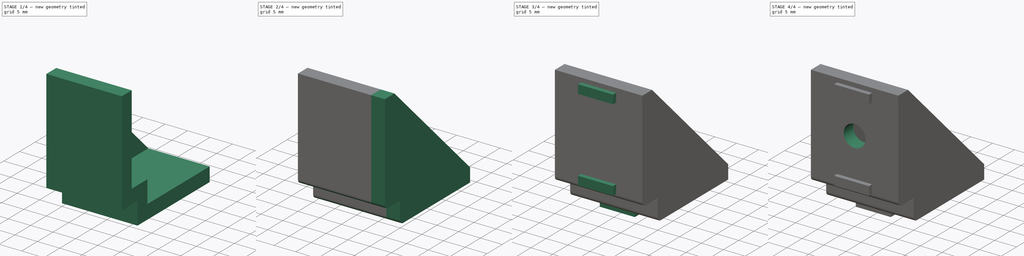
[diagram: build sequence overview — one tinted view per stage of 4, left to right]
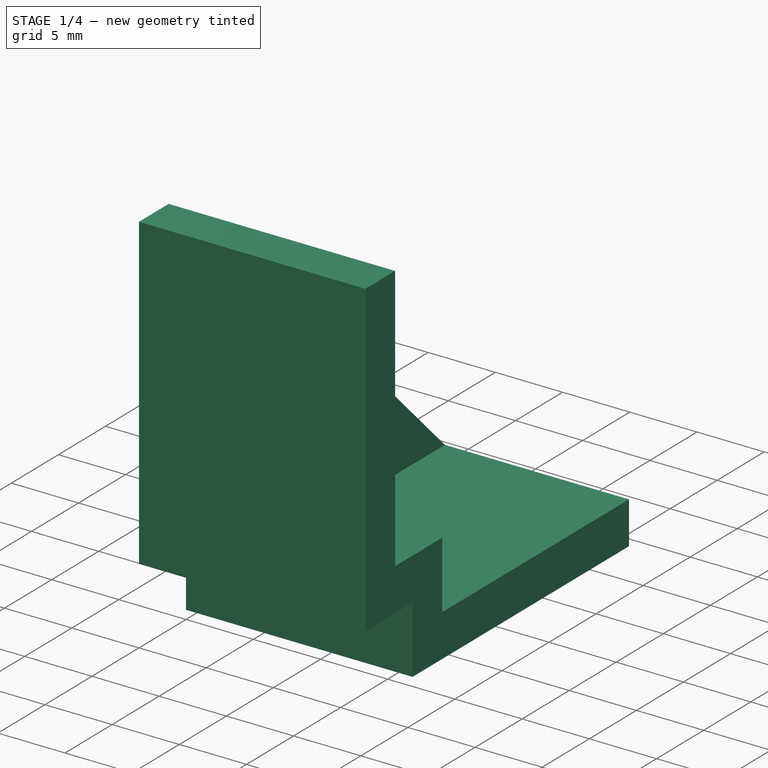
[diagram: stage 1 of 4 — iso view after this stage's code; geometry added in this stage tinted green]
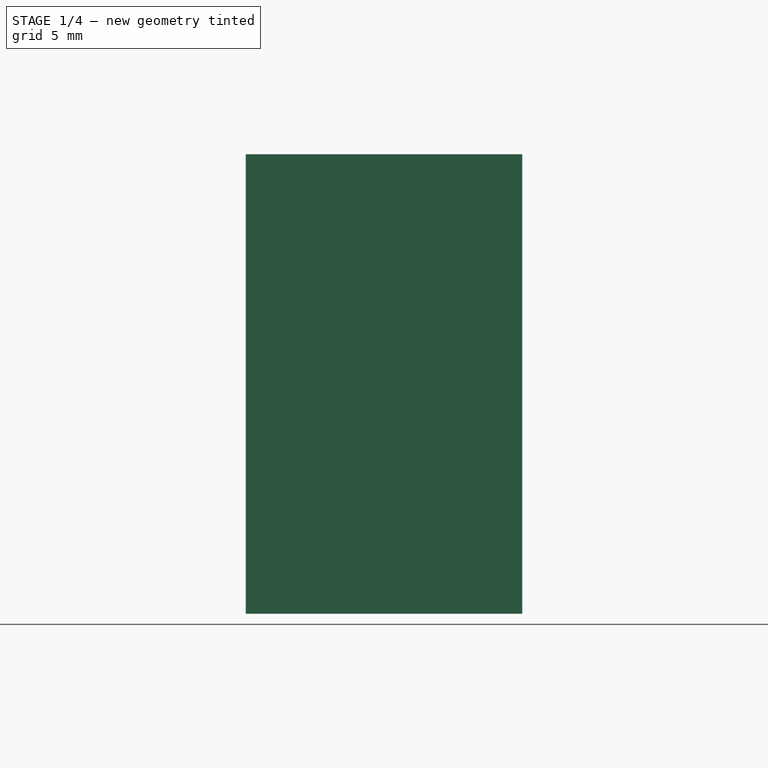
[diagram: stage 1 of 4 — front view after this stage's code; geometry added in this stage tinted green]
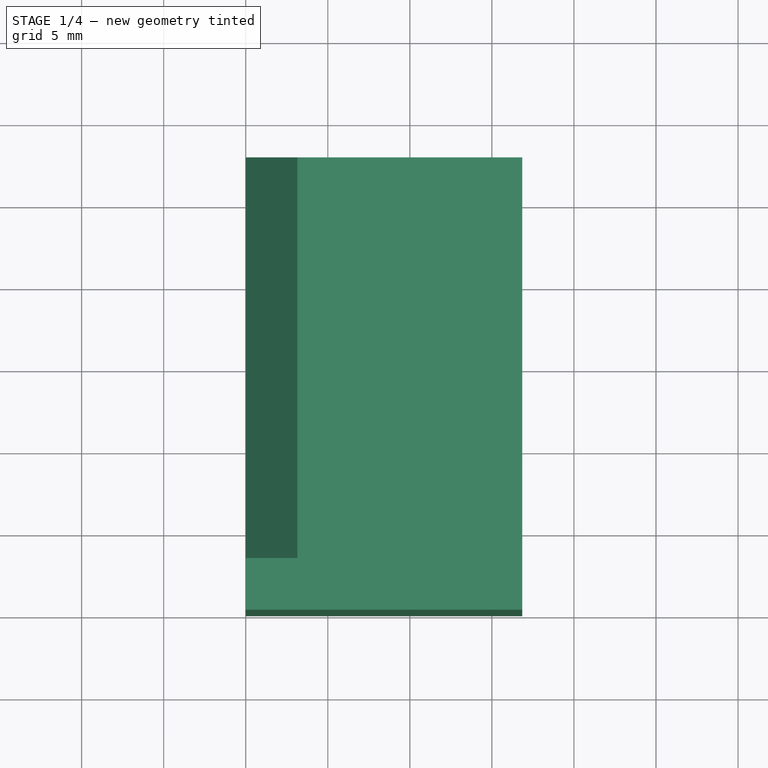
[diagram: stage 1 of 4 — top view after this stage's code; geometry added in this stage tinted green]
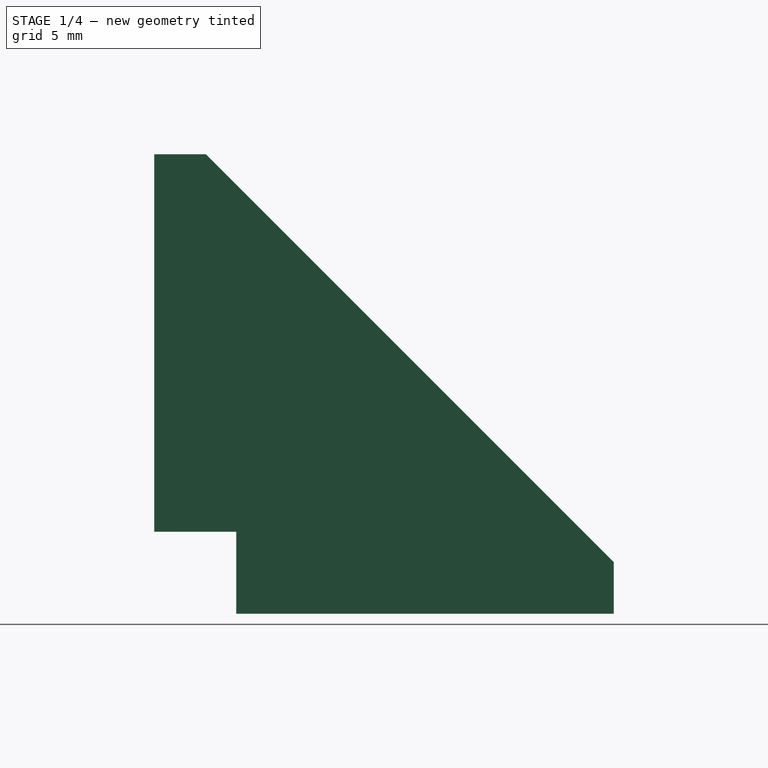
[diagram: stage 1 of 4 — right view after this stage's code; geometry added in this stage tinted green]
FCSTD DOCUMENT  (FreeCAD 0.17R13387 (Git))
Label: Corner_bracket_20to30_2028
License: All rights reserved
LicenseURL: http://en.wikipedia.org/wiki/All_rights_reserved
objects: Sketcher::SketchObject×6, PartDesign::Pad×4, PartDesign::Fillet×2, PartDesign::Pocket×2, PartDesign::Mirrored×1, PartDesign::Body×1
note: 22 computed .brp shape members not serialized (recipe doc carries the construction recipe); baked Part::Feature solids carry a one-line shape summary decoded from their .brp

FEATURE [Sketcher::SketchObject] Sketch
  MapMode = 5
  Placement = pos=(0,0,0) rot=(0.57735,0.57735,0.57735;2.0944rad)
  Support = -> [YZ_Plane]
  sketch-geometry (10):
    g0: LineSegment StartX=0 StartY=28 StartZ=0 EndX=0 EndY=5 EndZ=0
    g1: LineSegment StartX=0 StartY=5 StartZ=0 EndX=5 EndY=5 EndZ=0
    g2: LineSegment StartX=5 StartY=5 StartZ=0 EndX=5 EndY=0 EndZ=0
    g3: LineSegment StartX=5 StartY=0 StartZ=0 EndX=28 EndY=0 EndZ=0
    g4: LineSegment StartX=28 StartY=0 StartZ=0 EndX=28 EndY=3.15 EndZ=0
    g5: LineSegment StartX=28 StartY=3.15 StartZ=0 EndX=8.15 EndY=3.15 EndZ=0
    g6: LineSegment StartX=8.15 StartY=3.15 StartZ=0 EndX=8.15 EndY=8.15 EndZ=0
    g7: LineSegment StartX=8.15 StartY=8.15 StartZ=0 EndX=3.15 EndY=8.15 EndZ=0
    g8: LineSegment StartX=3.15 StartY=8.15 StartZ=0 EndX=3.15 EndY=28 EndZ=0
    g9: LineSegment StartX=3.15 StartY=28 StartZ=0 EndX=0 EndY=28 EndZ=0
  constraints (30):
    c: PointOnObject(g0,g-2)
    c: Vertical(g0)
    c: Coincident(g0,g1)
    c: Horizontal(g1)
    c: Coincident(g1,g2)
    c: PointOnObject(g2,g-1)
    c: Vertical(g2)
    c: Coincident(g2,g3)
    c: Horizontal(g3)
    c: Coincident(g3,g4)
    c: Vertical(g4)
    c: Coincident(g4,g5)
    c: Horizontal(g5)
    c: Coincident(g5,g6)
    c: Vertical(g6)
    c: Coincident(g6,g7)
    c: Horizontal(g7)
    c: Coincident(g7,g8)
    c: Vertical(g8)
    c: Coincident(g8,g9)
    c: Coincident(g9,g0)
    c: Horizontal(g9)
    c: DistanceY(g0,g0) = 23
    c: DistanceY(g-1,g0) = 5
    c: DistanceX(g-1,g2) = 5
    c: DistanceX(g3,g3) = 23
    c: DistanceY(g4,g4) = 3.15
    c: DistanceX(g9,g9) = 3.15
    c: DistanceX(g1,g5) = 3.15
    c: DistanceY(g1,g7) = 3.15
FEATURE [PartDesign::Pad] Pad
  Length = 13.7
  Length2 = 100
  Midplane = true
  Placement = pos=(0,0,0) rot=(0.57735,0.57735,0.57735;2.0944rad)
  Profile = -> Sketch
  Type = 0
FEATURE [Sketcher::SketchObject] Sketch001
  MapMode = 5
  Placement = pos=(-6.85,0,0) rot=(0.57735,0.57735,-0.57735;4.18879rad)
  Support = -> [Pad]
  sketch-geometry (7):
    g0: LineSegment StartX=0 StartY=-28 StartZ=0 EndX=0 EndY=-5 EndZ=0
    g1: LineSegment StartX=0 StartY=-5 StartZ=0 EndX=5 EndY=-5 EndZ=0
    g2: LineSegment StartX=5 StartY=-5 StartZ=0 EndX=5 EndY=0 EndZ=0
    g3: LineSegment StartX=5 StartY=0 StartZ=0 EndX=28 EndY=0 EndZ=0
    g4: LineSegment StartX=28 StartY=0 StartZ=0 EndX=28 EndY=-3.15 EndZ=0
    g5: LineSegment StartX=28 StartY=-3.15 StartZ=0 EndX=3.15 EndY=-28 EndZ=0
    g6: LineSegment StartX=3.15 StartY=-28 StartZ=0 EndX=0 EndY=-28 EndZ=0
  constraints (21):
    c: PointOnObject(g0,g-2)
    c: PointOnObject(g0,g-2)
    c: Coincident(g0,g1)
    c: Coincident(g1,g2)
    c: Vertical(g2)
    c: Coincident(g2,g3)
    c: PointOnObject(g3,g-1)
    c: Horizontal(g3)
    c: Coincident(g3,g4)
    c: Vertical(g4)
    c: Coincident(g4,g5)
    c: Coincident(g5,g6)
    c: Coincident(g6,g0)
    c: Horizontal(g6)
    c: Horizontal(g1)
    c: DistanceY(g4,g4) = 3.15
    c: DistanceX(g6,g6) = 3.15
    c: DistanceX(g1) = 5
    c: DistanceY(g1) = -5
    c: DistanceY(g0,g0) = 23
    c: DistanceX(g3,g3) = 23
FEATURE [PartDesign::Pad] Pad001
  BaseFeature = -> Pad
  Length = 3.15
  Length2 = 100
  Placement = pos=(0,0,0) rot=(0.57735,0.57735,0.57735;2.0944rad)
  Profile = -> Sketch001
  Type = 0
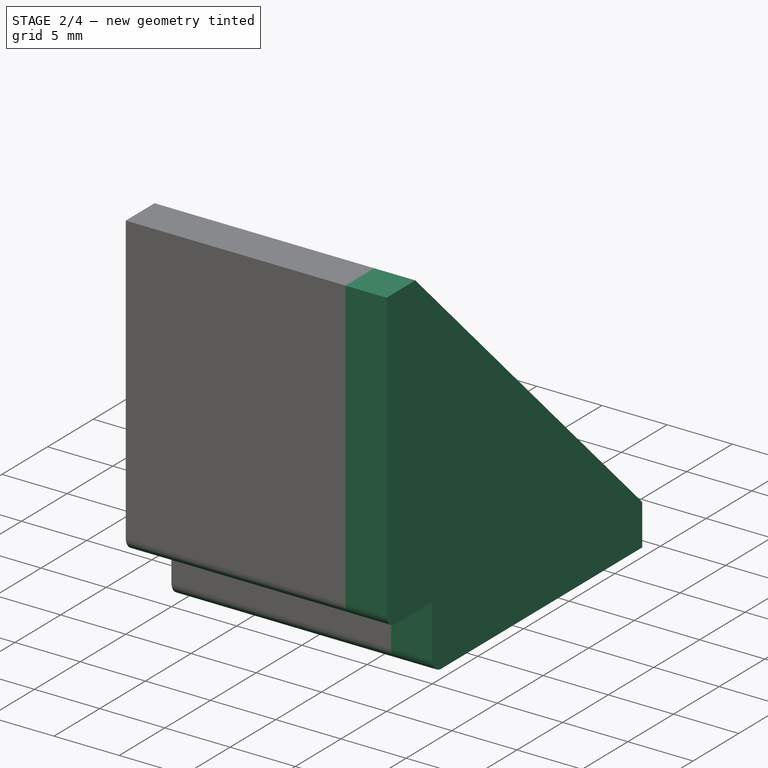
[diagram: stage 2 of 4 — iso view after this stage's code; geometry added in this stage tinted green]
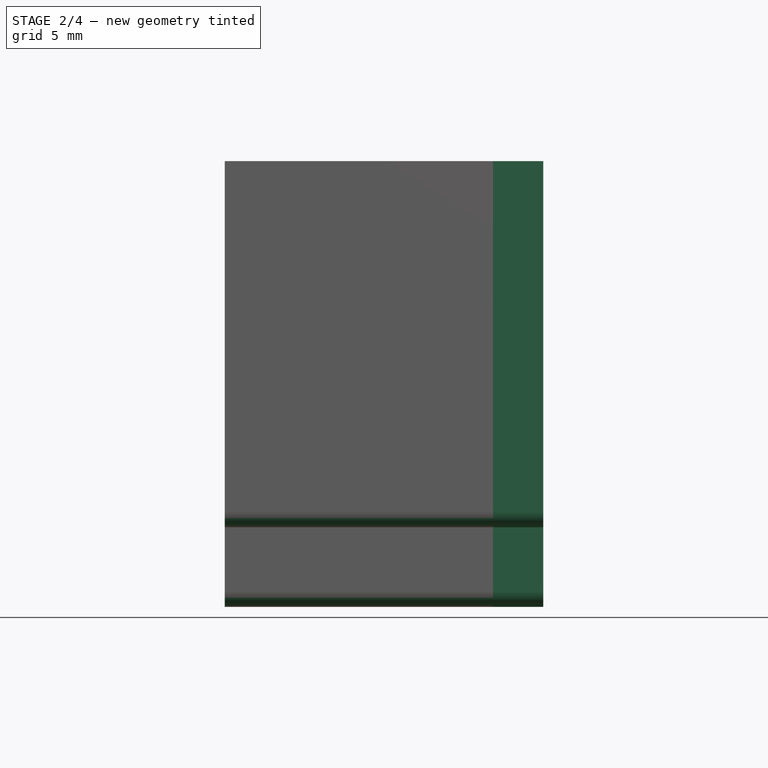
[diagram: stage 2 of 4 — front view after this stage's code; geometry added in this stage tinted green]
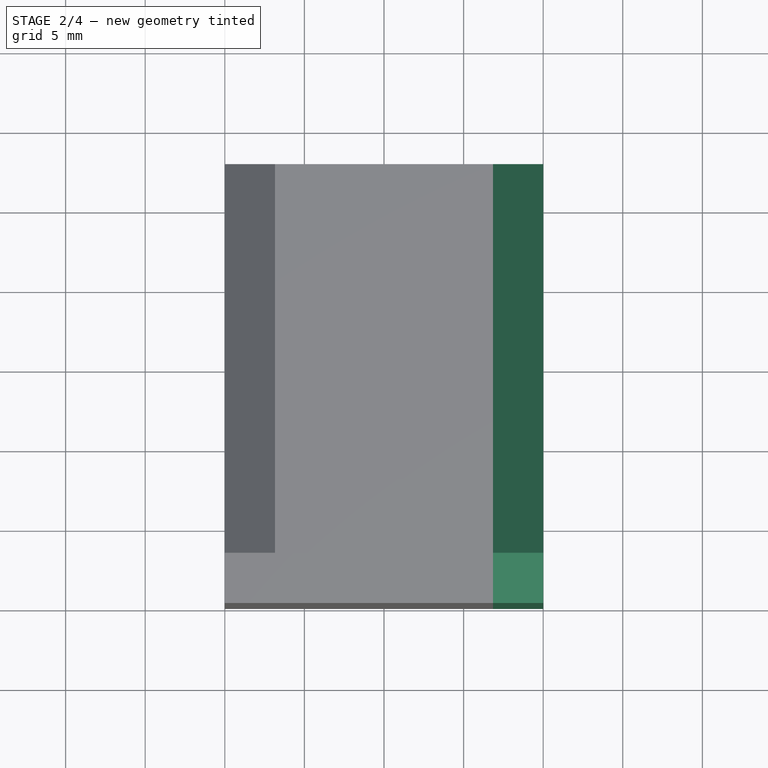
[diagram: stage 2 of 4 — top view after this stage's code; geometry added in this stage tinted green]
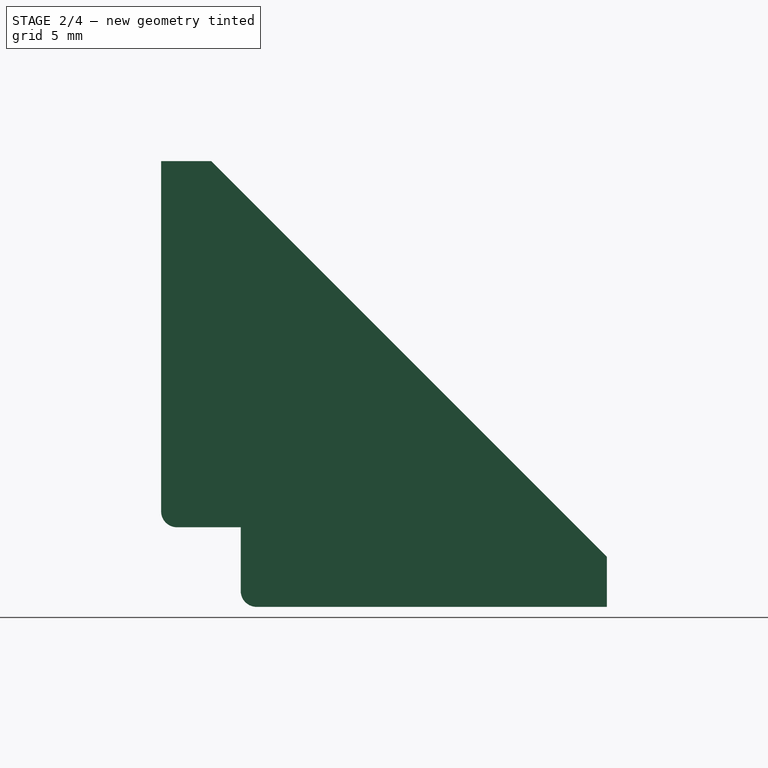
[diagram: stage 2 of 4 — right view after this stage's code; geometry added in this stage tinted green]
FEATURE [PartDesign::Mirrored] Mirrored
  BaseFeature = -> Pad001
  MirrorPlane = -> YZ_Plane
  Originals = -> [Pad001]
  Placement = pos=(0,0,0) rot=(0.57735,0.57735,0.57735;2.0944rad)
FEATURE [PartDesign::Fillet] Fillet
  Base = -> Mirrored [Edge56,Edge30]
  BaseFeature = -> Mirrored
  Placement = pos=(0,0,0) rot=(0.57735,0.57735,0.57735;2.0944rad)
  Radius = 1
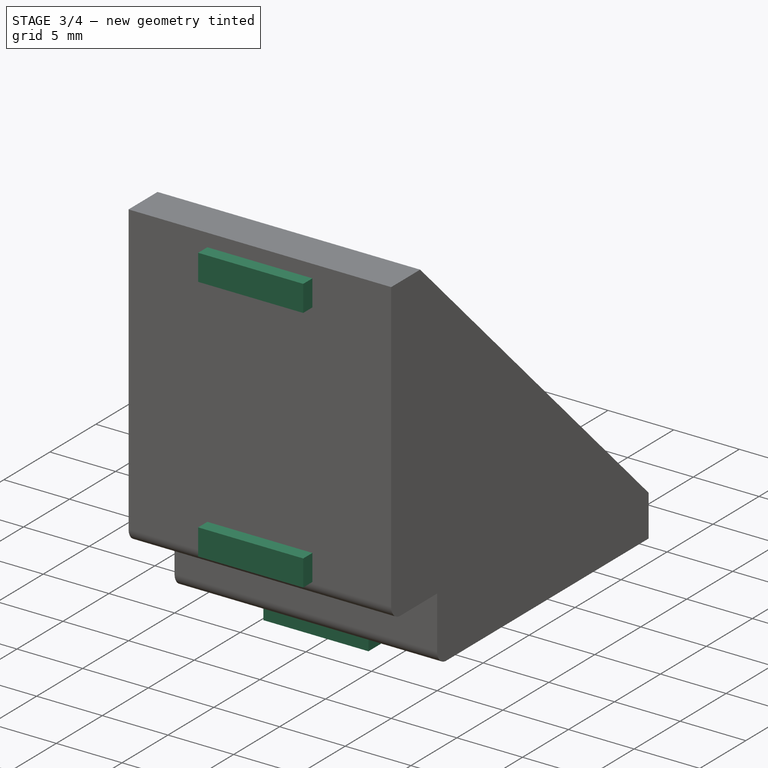
[diagram: stage 3 of 4 — iso view after this stage's code; geometry added in this stage tinted green]
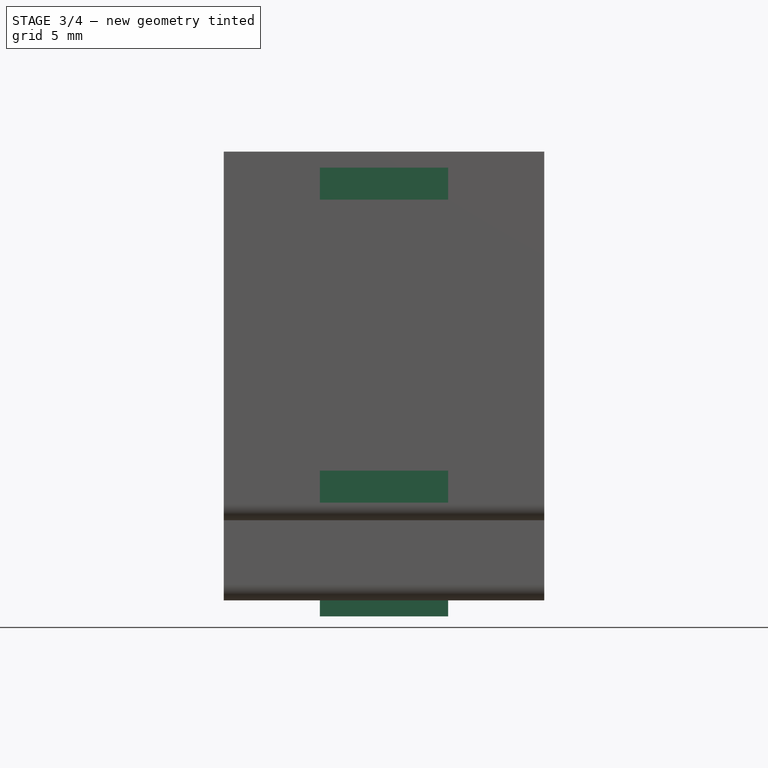
[diagram: stage 3 of 4 — front view after this stage's code; geometry added in this stage tinted green]
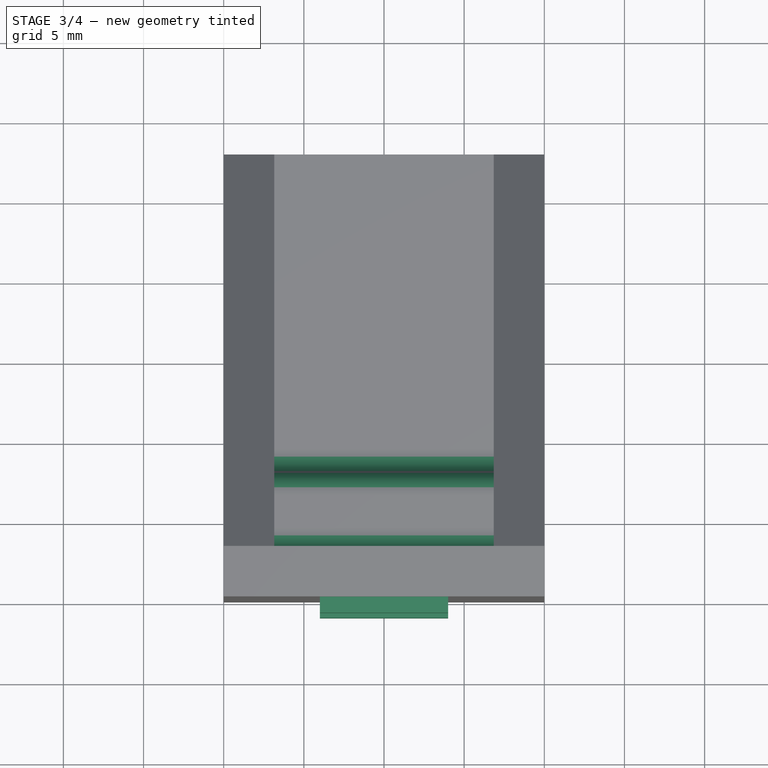
[diagram: stage 3 of 4 — top view after this stage's code; geometry added in this stage tinted green]
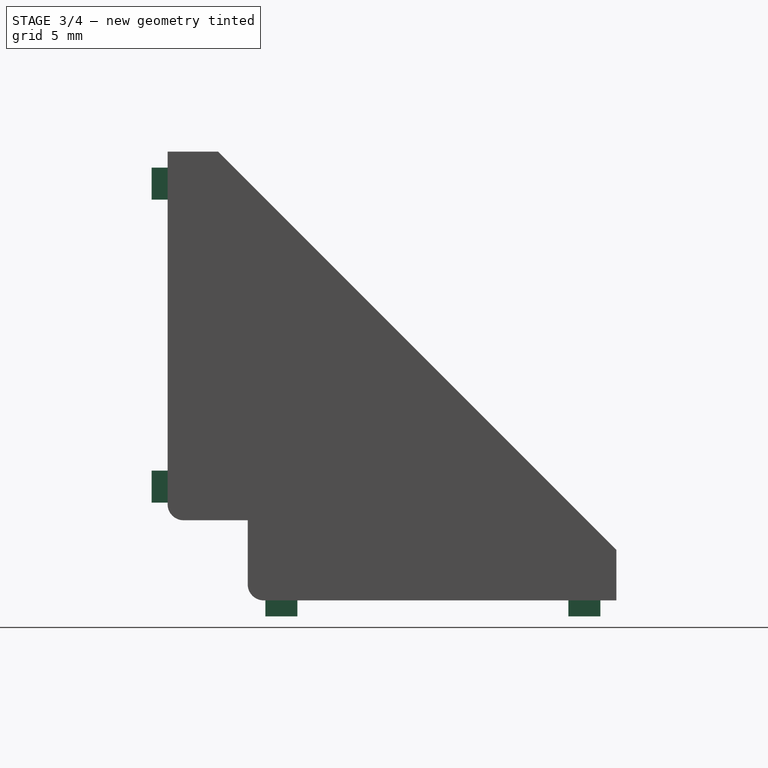
[diagram: stage 3 of 4 — right view after this stage's code; geometry added in this stage tinted green]
FEATURE [PartDesign::Fillet] Fillet001
  Base = -> Fillet [Edge54,Edge63,Edge61]
  BaseFeature = -> Fillet
  Placement = pos=(0,0,0) rot=(0.57735,0.57735,0.57735;2.0944rad)
  Radius = 1.5
FEATURE [Sketcher::SketchObject] Sketch002
  MapMode = 5
  Placement = pos=(0,0,0) rot=(-0.57735,-0.57735,0.57735;4.18879rad)
  Support = -> [Fillet001]
  sketch-geometry (8):
    g0: LineSegment StartX=-27 StartY=4 StartZ=0 EndX=-25 EndY=4 EndZ=0
    g1: LineSegment StartX=-25 StartY=4 StartZ=0 EndX=-25 EndY=-4 EndZ=0
    g2: LineSegment StartX=-25 StartY=-4 StartZ=0 EndX=-27 EndY=-4 EndZ=0
    g3: LineSegment StartX=-27 StartY=-4 StartZ=0 EndX=-27 EndY=4 EndZ=0
    g4: LineSegment StartX=-6.1 StartY=4 StartZ=0 EndX=-8.1 EndY=4 EndZ=0
    g5: LineSegment StartX=-8.1 StartY=4 StartZ=0 EndX=-8.1 EndY=-4 EndZ=0
    g6: LineSegment StartX=-8.1 StartY=-4 StartZ=0 EndX=-6.1 EndY=-4 EndZ=0
    g7: LineSegment StartX=-6.1 StartY=-4 StartZ=0 EndX=-6.1 EndY=4 EndZ=0
  constraints (25):
    c: Coincident(g0,g1)
    c: Coincident(g1,g2)
    c: Coincident(g2,g3)
    c: Coincident(g3,g0)
    c: Horizontal(g0)
    c: Horizontal(g2)
    c: Vertical(g1)
    c: Vertical(g3)
    c: Coincident(g4,g5)
    c: Coincident(g5,g6)
    c: Coincident(g6,g7)
    c: Coincident(g7,g4)
    c: Horizontal(g4)
    c: Horizontal(g6)
    c: Vertical(g5)
    c: Vertical(g7)
    c: Equal(g0,g4)
    c: Equal(g3,g7)
    c: DistanceY(g3,g3) = 8
    c: Equal(g3,g7)
    c: DistanceX(g0,g0) = 2
    c: Symmetric(g1,g0,g-1)
    c: Symmetric(g6,g4,g-1)
    c: DistanceX(g1) = -25
    c: DistanceX(g6) = -6.1
FEATURE [PartDesign::Pad] Pad002
  BaseFeature = -> Fillet001
  Length = 1
  Length2 = 100
  Placement = pos=(0,0,0) rot=(0.57735,0.57735,0.57735;2.0944rad)
  Profile = -> Sketch002
  Type = 0
FEATURE [Sketcher::SketchObject] Sketch003
  MapMode = 5
  Placement = pos=(0,0,0) rot=(0.707107,0.707107,0;3.14159rad)
  Support = -> [Pad002]
  sketch-geometry (8):
    g0: LineSegment StartX=6.1 StartY=4 StartZ=0 EndX=8.1 EndY=4 EndZ=0
    g1: LineSegment StartX=8.1 StartY=4 StartZ=0 EndX=8.1 EndY=-4 EndZ=0
    g2: LineSegment StartX=8.1 StartY=-4 StartZ=0 EndX=6.1 EndY=-4 EndZ=0
    g3: LineSegment StartX=6.1 StartY=-4 StartZ=0 EndX=6.1 EndY=4 EndZ=0
    g4: LineSegment StartX=25 StartY=4 StartZ=0 EndX=27 EndY=4 EndZ=0
    g5: LineSegment StartX=27 StartY=4 StartZ=0 EndX=27 EndY=-4 EndZ=0
    g6: LineSegment StartX=27 StartY=-4 StartZ=0 EndX=25 EndY=-4 EndZ=0
    g7: LineSegment StartX=25 StartY=-4 StartZ=0 EndX=25 EndY=4 EndZ=0
  constraints (24):
    c: Coincident(g0,g1)
    c: Coincident(g1,g2)
    c: Coincident(g2,g3)
    c: Coincident(g3,g0)
    c: Horizontal(g0)
    c: Horizontal(g2)
    c: Vertical(g1)
    c: Vertical(g3)
    c: Coincident(g4,g5)
    c: Coincident(g5,g6)
    c: Coincident(g6,g7)
    c: Coincident(g7,g4)
    c: Horizontal(g4)
    c: Horizontal(g6)
    c: Vertical(g5)
    c: Vertical(g7)
    c: DistanceX(g0,g0) = 2
    c: DistanceY(g1,g1) = 8
    c: Equal(g1,g7)
    c: Equal(g0,g4)
    c: PointOnObject(g4,g0)
    c: Symmetric(g4,g5,g-1)
    c: DistanceX(g2) = 6.1
    c: DistanceX(g6) = 25
FEATURE [PartDesign::Pad] Pad003
  BaseFeature = -> Pad002
  Length = 1
  Length2 = 100
  Placement = pos=(0,0,0) rot=(0.57735,0.57735,0.57735;2.0944rad)
  Profile = -> Sketch003
  Type = 0
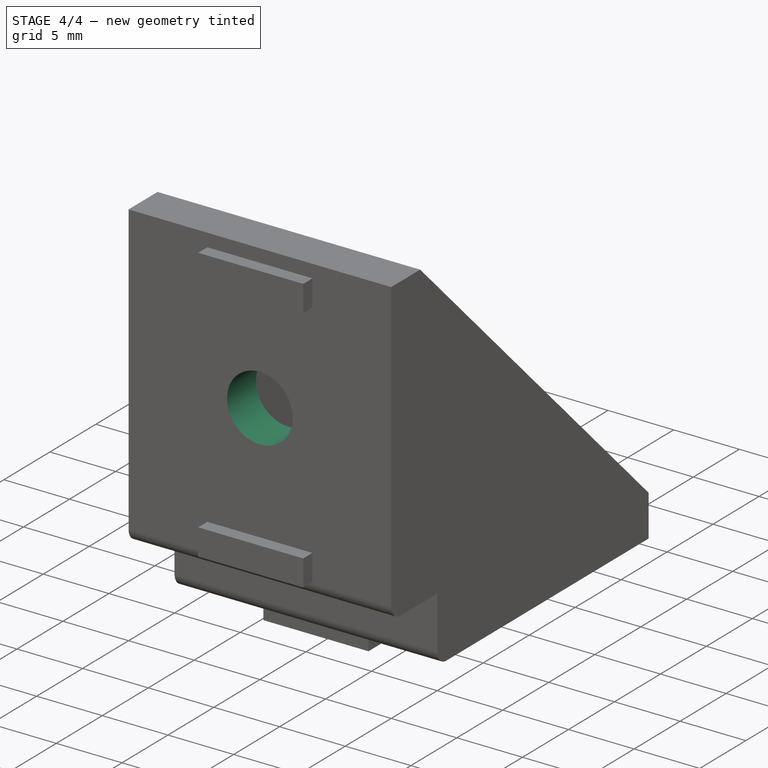
[diagram: stage 4 of 4 — iso view after this stage's code; geometry added in this stage tinted green]
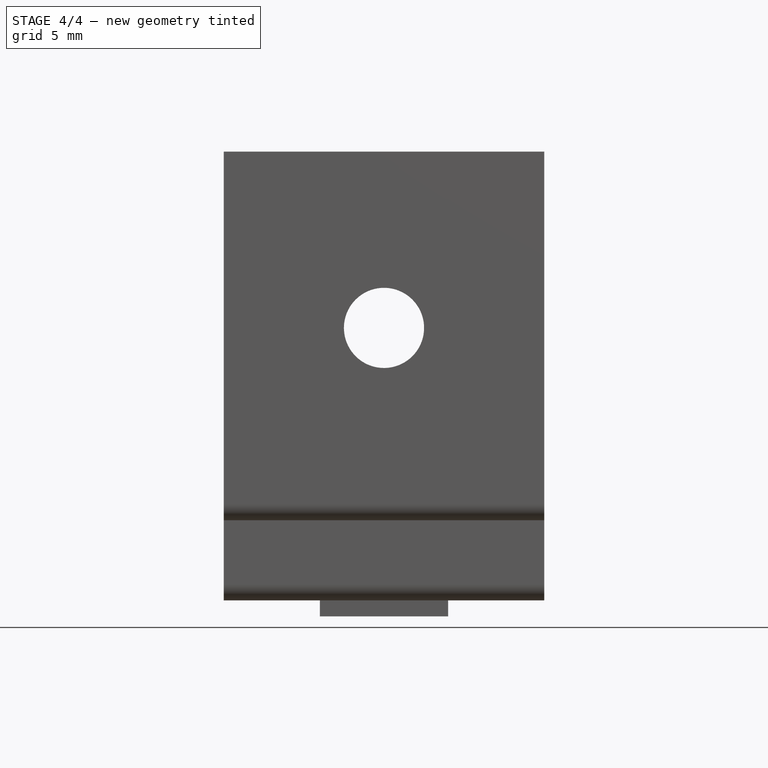
[diagram: stage 4 of 4 — front view after this stage's code; geometry added in this stage tinted green]
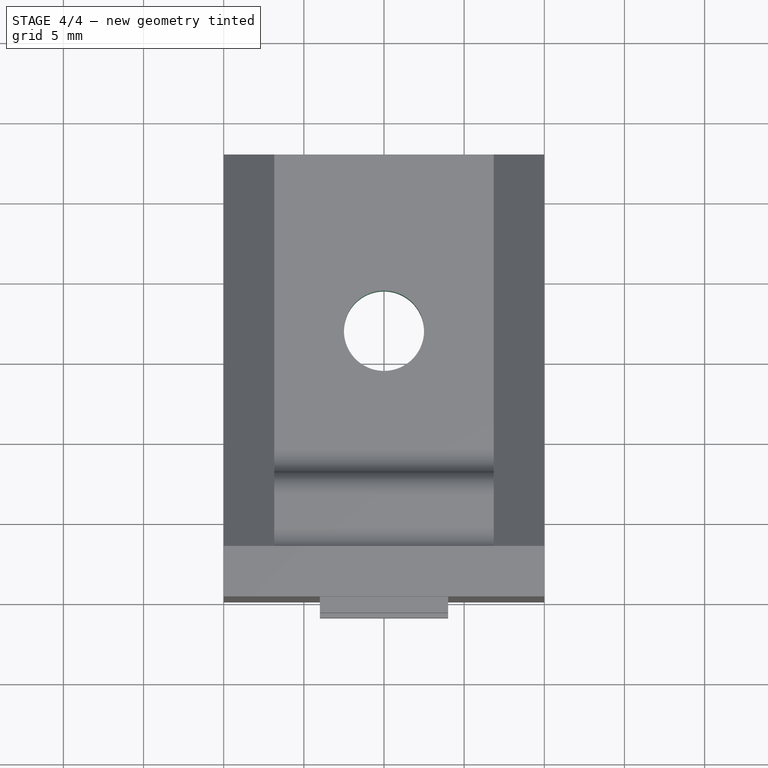
[diagram: stage 4 of 4 — top view after this stage's code; geometry added in this stage tinted green]
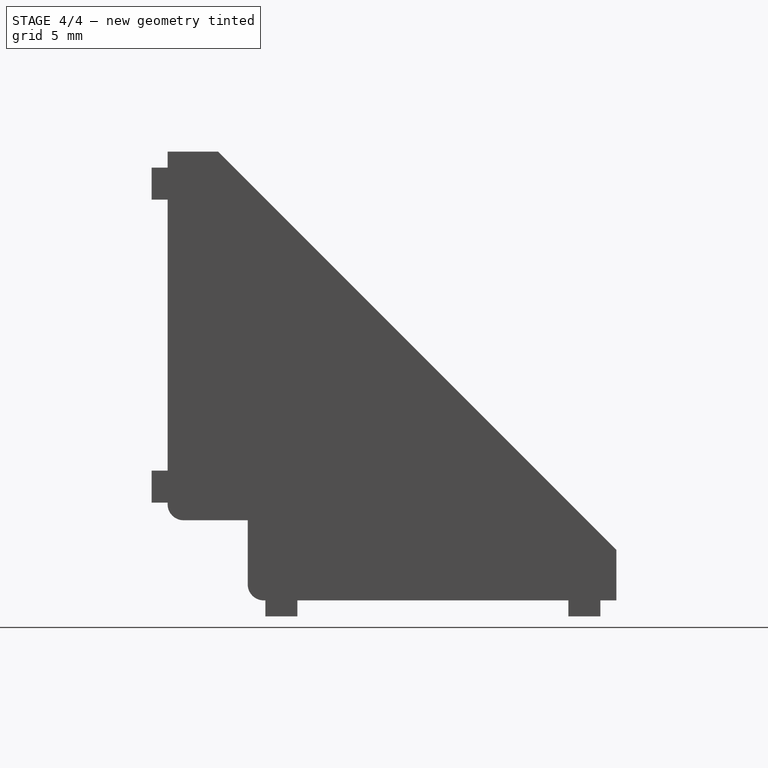
[diagram: stage 4 of 4 — right view after this stage's code; geometry added in this stage tinted green]
FEATURE [Sketcher::SketchObject] Sketch004
  MapMode = 5
  Placement = pos=(0,3.15,0) rot=(0.57735,0.57735,0.57735;4.18879rad)
  Support = -> [Pad003]
  sketch-geometry (1):
    g0: Circle CenterX=17 CenterY=0 CenterZ=0 NormalX=0 NormalY=0 NormalZ=1 AngleXU=0 Radius=2.5
  constraints (3):
    c: PointOnObject(g0,g-1)
    c: Radius(g0) = 2.5
    c: DistanceX(g0) = 17
FEATURE [PartDesign::Pocket] Pocket
  BaseFeature = -> Pad003
  Length = 5
  Length2 = 100
  Placement = pos=(0,0,0) rot=(0.57735,0.57735,0.57735;2.0944rad)
  Profile = -> Sketch004
  Type = 1
FEATURE [Sketcher::SketchObject] Sketch005
  MapMode = 5
  Placement = pos=(0,0,3.15) rot=(0,0,-1;1.5708rad)
  Support = -> [Pocket]
  sketch-geometry (1):
    g0: Circle CenterX=-17 CenterY=0 CenterZ=0 NormalX=0 NormalY=0 NormalZ=1 AngleXU=0 Radius=2.5
  constraints (3):
    c: PointOnObject(g0,g-1)
    c: Radius(g0) = 2.5
    c: DistanceX(g0) = -17
FEATURE [PartDesign::Pocket] Pocket001
  BaseFeature = -> Pocket
  Length = 5
  Length2 = 100
  Placement = pos=(0,0,0) rot=(0.57735,0.57735,0.57735;2.0944rad)
  Profile = -> Sketch005
  Type = 1
FEATURE [PartDesign::Body] Body
  Group = -> [Sketch,Pad,Sketch001,Pad001,Mirrored,Fillet,Fillet001,Sketch002,Pad002,Sketch003,Pad003,Sketch004,Pocket,Sketch005,Pocket001]
  Origin = -> Origin
  Tip = -> Pocket001
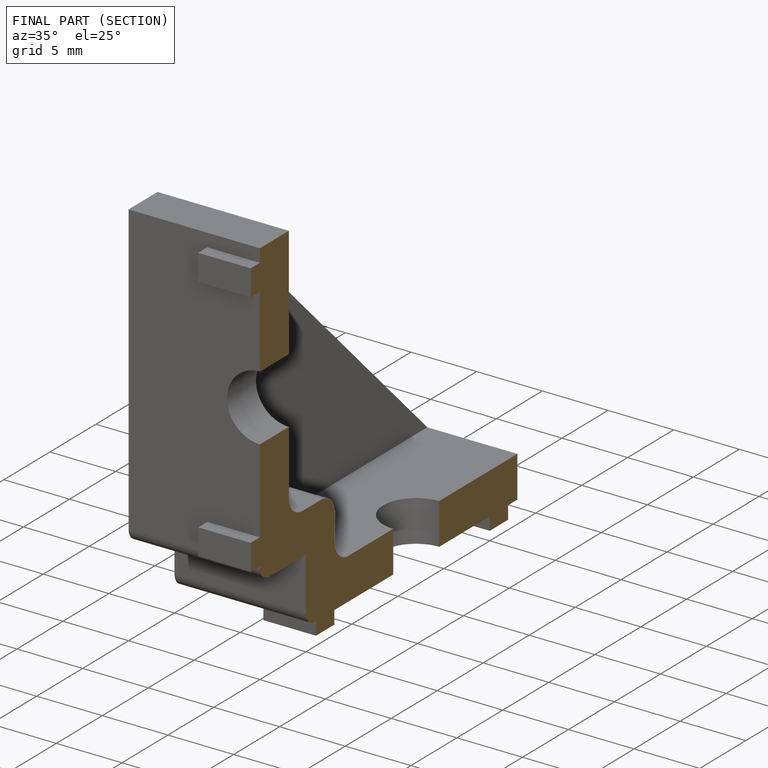
[diagram: finished part — half-section view (interior)]
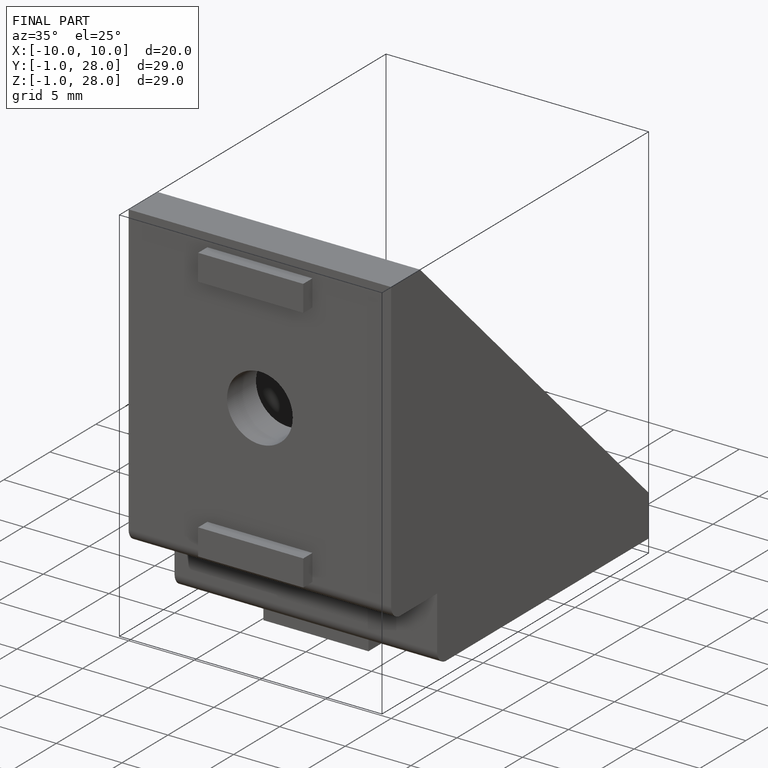
[diagram: finished part — iso view with bounding-box wireframe]
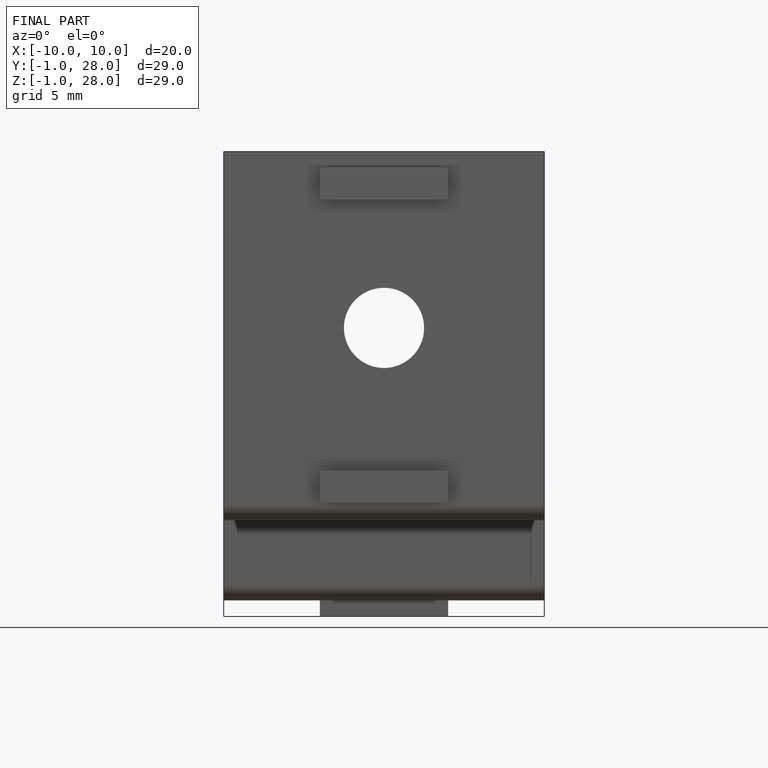
[diagram: finished part — front view with bounding-box wireframe]
